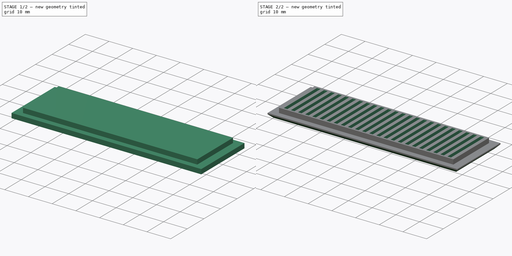
[diagram: build sequence overview — one tinted view per stage of 2, left to right]
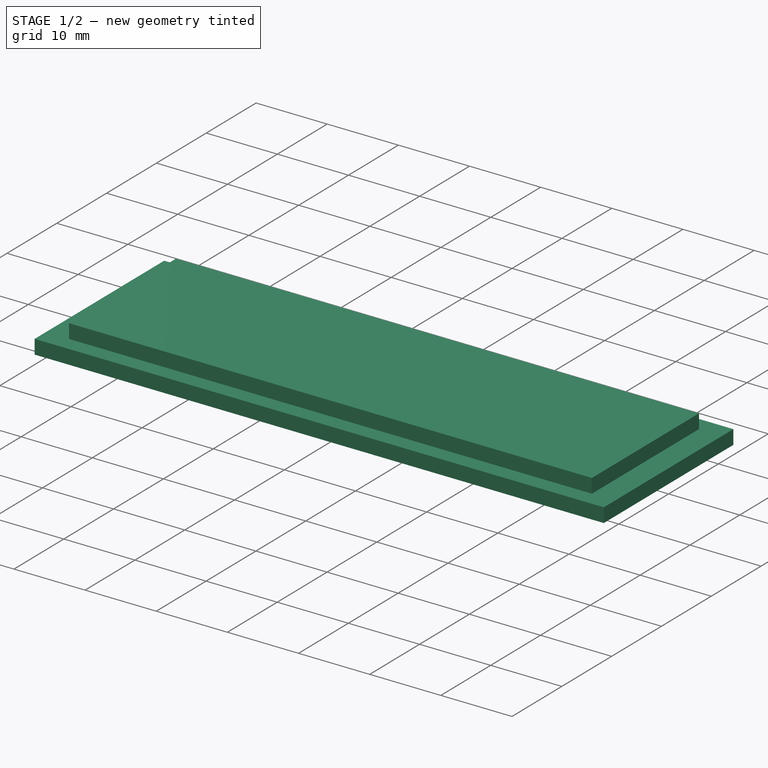
[diagram: stage 1 of 2 — iso view after this stage's code; geometry added in this stage tinted green]
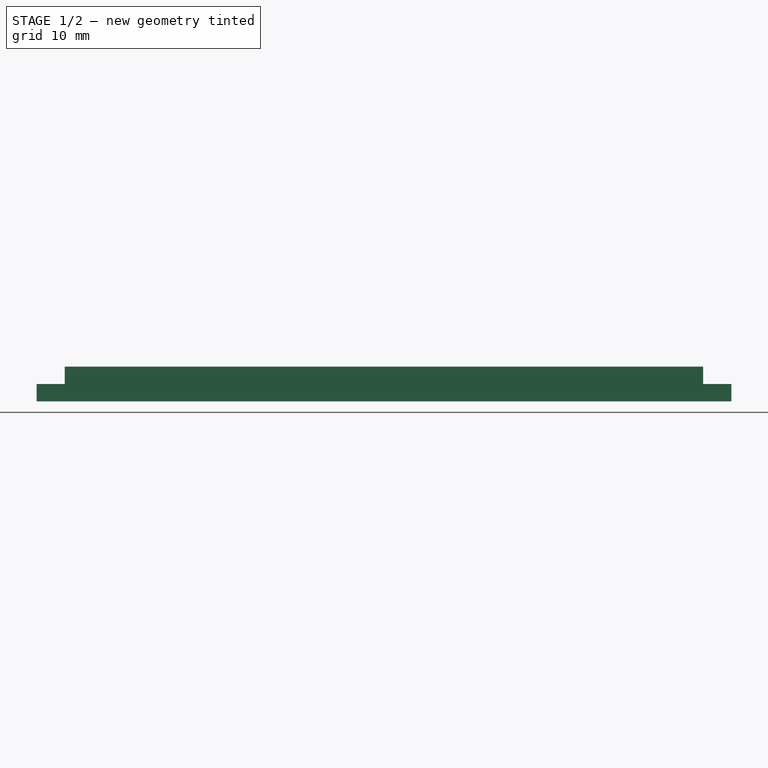
[diagram: stage 1 of 2 — front view after this stage's code; geometry added in this stage tinted green]
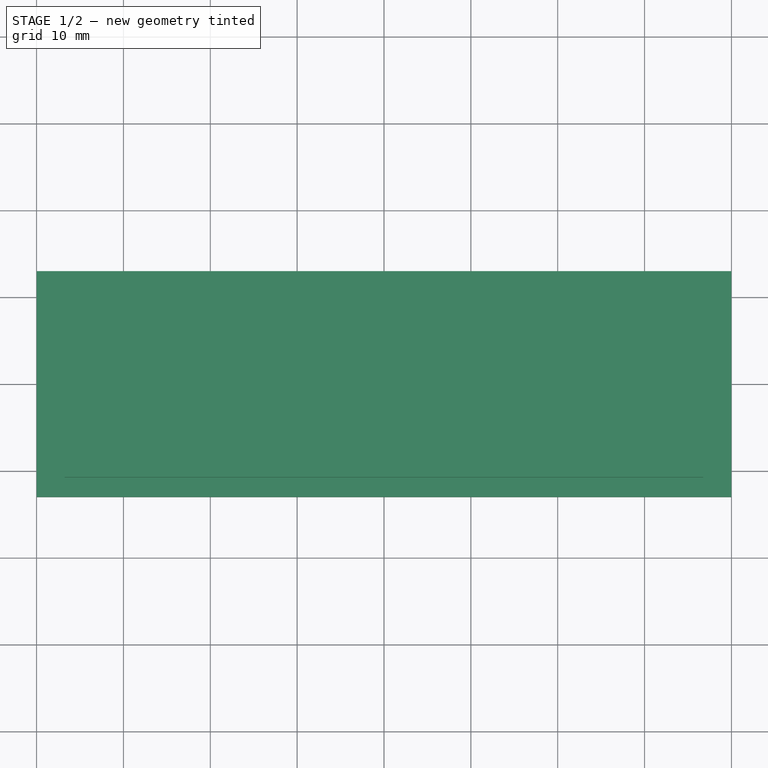
[diagram: stage 1 of 2 — top view after this stage's code; geometry added in this stage tinted green]
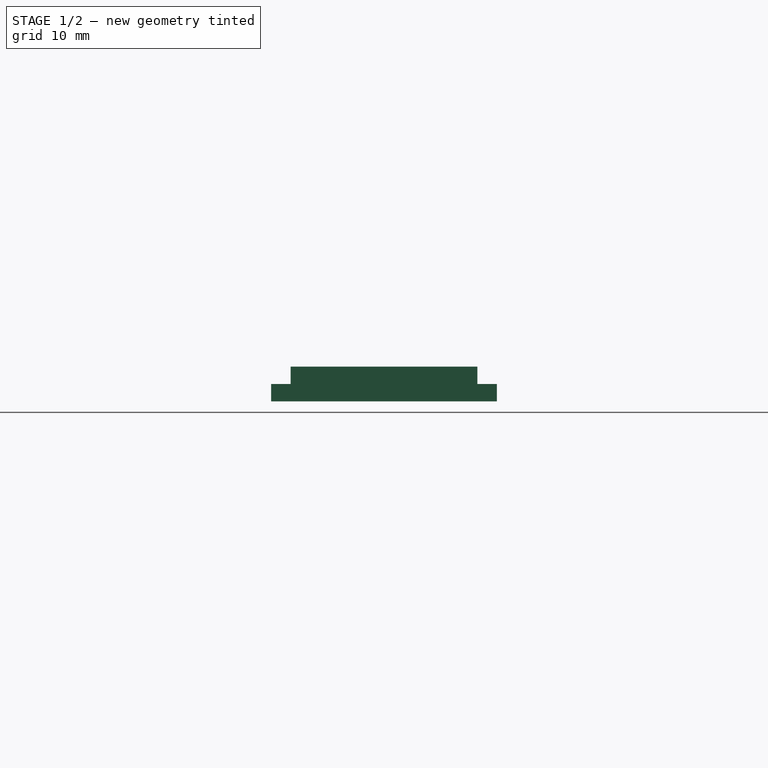
[diagram: stage 1 of 2 — right view after this stage's code; geometry added in this stage tinted green]
FCSTD DOCUMENT  (FreeCAD 0.19R19180 (Git))
Label: top_grill_mk1
License: All rights reserved
LicenseURL: http://en.wikipedia.org/wiki/All_rights_reserved
objects: Sketcher::SketchObject×3, PartDesign::Pad×2, PartDesign::Pocket×1, PartDesign::Chamfer×1, PartDesign::Body×1
note: 11 computed .brp shape members not serialized (recipe doc carries the construction recipe); baked Part::Feature solids carry a one-line shape summary decoded from their .brp

FEATURE [Sketcher::SketchObject] Sketch
  MapMode = 5
  Support = -> [XY_Plane]
  sketch-geometry (4):
    g0: LineSegment StartX=-40 StartY=13 StartZ=0 EndX=40 EndY=13 EndZ=0
    g1: LineSegment StartX=40 StartY=13 StartZ=0 EndX=40 EndY=-13 EndZ=0
    g2: LineSegment StartX=40 StartY=-13 StartZ=0 EndX=-40 EndY=-13 EndZ=0
    g3: LineSegment StartX=-40 StartY=-13 StartZ=0 EndX=-40 EndY=13 EndZ=0
  constraints (12):
    c: Coincident(g0,g1)
    c: Coincident(g1,g2)
    c: Coincident(g2,g3)
    c: Coincident(g3,g0)
    c: Horizontal(g0)
    c: Horizontal(g2)
    c: Vertical(g1)
    c: Vertical(g3)
    c: DistanceX(g0,g0) = 80
    c: DistanceY(g3,g3) = 26
    c: DistanceY(g-1,g0) = 13
    c: DistanceX(g0,g-1) = 40
FEATURE [PartDesign::Pad] Pad
  Length = 2
  Length2 = 100
  Profile = -> Sketch
  Type = 0
FEATURE [Sketcher::SketchObject] Sketch001
  MapMode = 5
  Placement = pos=(0,0,2) rot=(0,0,1;0rad)
  Support = -> [Pad]
  sketch-geometry (4):
    g0: LineSegment StartX=-36.75 StartY=10.75 StartZ=0 EndX=36.75 EndY=10.75 EndZ=0
    g1: LineSegment StartX=36.75 StartY=10.75 StartZ=0 EndX=36.75 EndY=-10.75 EndZ=0
    g2: LineSegment StartX=36.75 StartY=-10.75 StartZ=0 EndX=-36.75 EndY=-10.75 EndZ=0
    g3: LineSegment StartX=-36.75 StartY=-10.75 StartZ=0 EndX=-36.75 EndY=10.75 EndZ=0
  constraints (12):
    c: Coincident(g0,g1)
    c: Coincident(g1,g2)
    c: Coincident(g2,g3)
    c: Coincident(g3,g0)
    c: Horizontal(g0)
    c: Horizontal(g2)
    c: Vertical(g1)
    c: Vertical(g3)
    c: DistanceX(g0,g0) = 73.5
    c: DistanceX(g0,g-1) = 36.75
    c: DistanceY(g1,g1) = 21.5
    c: DistanceY(g-1,g0) = 10.75
FEATURE [PartDesign::Pad] Pad001
  BaseFeature = -> Pad
  Length = 2
  Length2 = 100
  Profile = -> Sketch001
  Type = 0
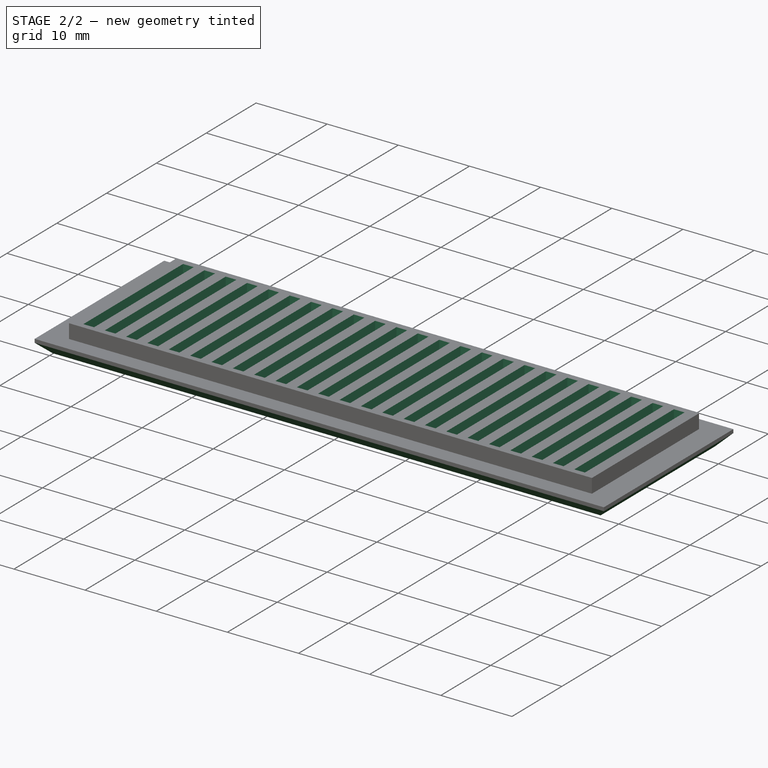
[diagram: stage 2 of 2 — iso view after this stage's code; geometry added in this stage tinted green]
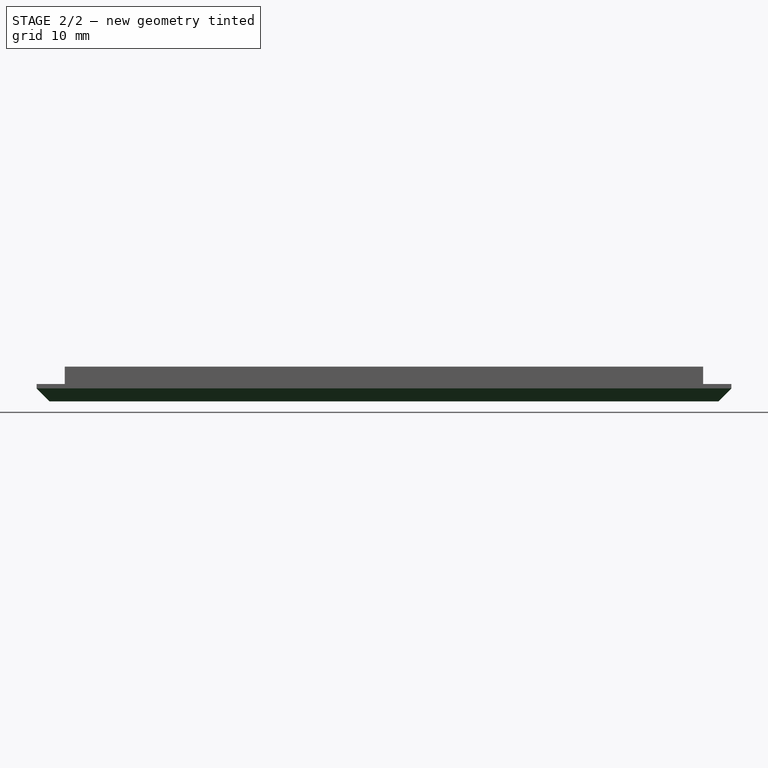
[diagram: stage 2 of 2 — front view after this stage's code; geometry added in this stage tinted green]
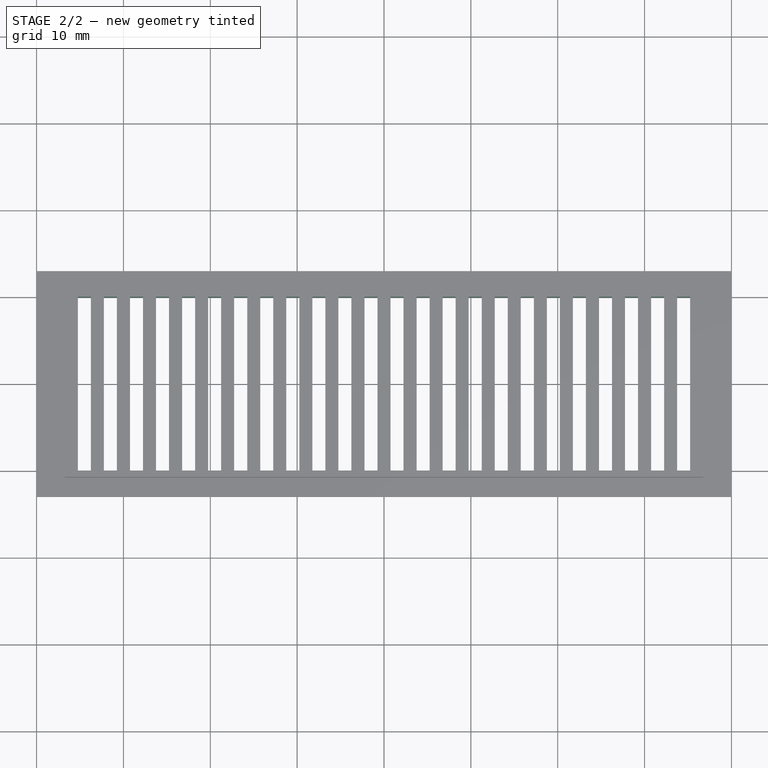
[diagram: stage 2 of 2 — top view after this stage's code; geometry added in this stage tinted green]
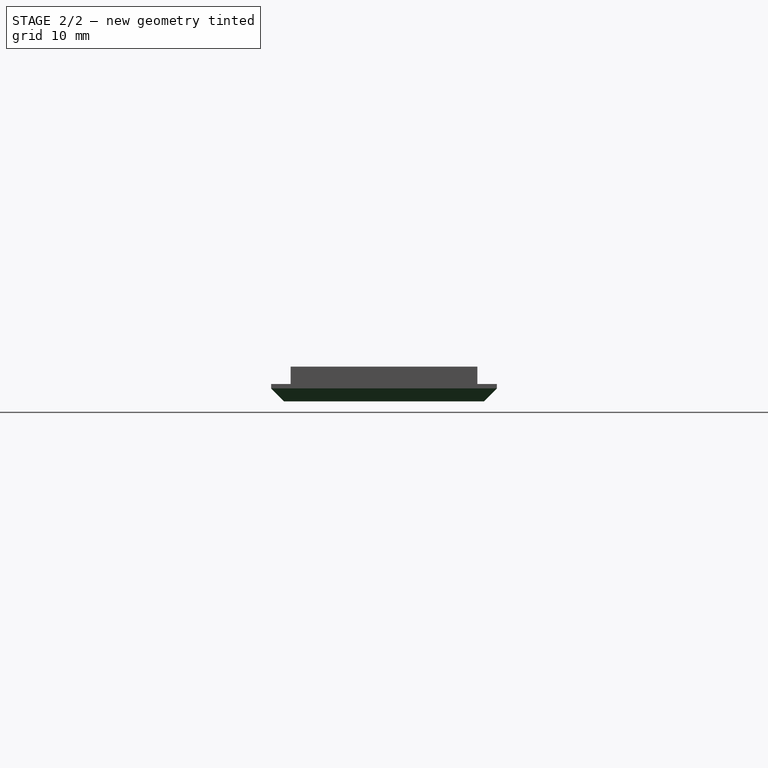
[diagram: stage 2 of 2 — right view after this stage's code; geometry added in this stage tinted green]
FEATURE [Sketcher::SketchObject] Sketch002
  MapMode = 5
  Placement = pos=(0,0,4) rot=(0,0,1;0rad)
  Support = -> [Pad001]
  sketch-geometry (96):
    g0: LineSegment StartX=0.75 StartY=10 StartZ=0 EndX=2.25 EndY=10 EndZ=0
    g1: LineSegment StartX=2.25 StartY=10 StartZ=0 EndX=2.25 EndY=-10 EndZ=0
    g2: LineSegment StartX=2.25 StartY=-10 StartZ=0 EndX=0.75 EndY=-10 EndZ=0
    g3: LineSegment StartX=0.75 StartY=-10 StartZ=0 EndX=0.75 EndY=10 EndZ=0
    g4: LineSegment StartX=3.75 StartY=10 StartZ=0 EndX=5.25 EndY=10 EndZ=0
    g5: LineSegment StartX=5.25 StartY=10 StartZ=0 EndX=5.25 EndY=-10 EndZ=0
    g6: LineSegment StartX=5.25 StartY=-10 StartZ=0 EndX=3.75 EndY=-10 EndZ=0
    g7: LineSegment StartX=3.75 StartY=-10 StartZ=0 EndX=3.75 EndY=10 EndZ=0
    g8: LineSegment StartX=6.75 StartY=10 StartZ=0 EndX=8.25 EndY=10 EndZ=0
    g9: LineSegment StartX=8.25 StartY=10 StartZ=0 EndX=8.25 EndY=-10 EndZ=0
    g10: LineSegment StartX=8.25 StartY=-10 StartZ=0 EndX=6.75 EndY=-10 EndZ=0
    g11: LineSegment StartX=6.75 StartY=-10 StartZ=0 EndX=6.75 EndY=10 EndZ=0
    g12: LineSegment StartX=9.75 StartY=10 StartZ=0 EndX=11.25 EndY=10 EndZ=0
    g13: LineSegment StartX=11.25 StartY=10 StartZ=0 EndX=11.25 EndY=-10 EndZ=0
    g14: LineSegment StartX=11.25 StartY=-10 StartZ=0 EndX=9.75 EndY=-10 EndZ=0
    g15: LineSegment StartX=9.75 StartY=-10 StartZ=0 EndX=9.75 EndY=10 EndZ=0
    g16: LineSegment StartX=12.75 StartY=10 StartZ=0 EndX=14.25 EndY=10 EndZ=0
    g17: LineSegment StartX=14.25 StartY=10 StartZ=0 EndX=14.25 EndY=-10 EndZ=0
    g18: LineSegment StartX=14.25 StartY=-10 StartZ=0 EndX=12.75 EndY=-10 EndZ=0
    g19: LineSegment StartX=12.75 StartY=-10 StartZ=0 EndX=12.75 EndY=10 EndZ=0
    g20: LineSegment StartX=15.75 StartY=10 StartZ=0 EndX=17.25 EndY=10 EndZ=0
    g21: LineSegment StartX=17.25 StartY=10 StartZ=0 EndX=17.25 EndY=-10 EndZ=0
    g22: LineSegment StartX=17.25 StartY=-10 StartZ=0 EndX=15.75 EndY=-10 EndZ=0
    g23: LineSegment StartX=15.75 StartY=-10 StartZ=0 EndX=15.75 EndY=10 EndZ=0
    g24: LineSegment StartX=18.75 StartY=10 StartZ=0 EndX=20.25 EndY=10 EndZ=0
    g25: LineSegment StartX=20.25 StartY=10 StartZ=0 EndX=20.25 EndY=-10 EndZ=0
    g26: LineSegment StartX=20.25 StartY=-10 StartZ=0 EndX=18.75 EndY=-10 EndZ=0
    g27: LineSegment StartX=18.75 StartY=-10 StartZ=0 EndX=18.75 EndY=10 EndZ=0
    g28: LineSegment StartX=21.75 StartY=10 StartZ=0 EndX=23.25 EndY=10 EndZ=0
    g29: LineSegment StartX=23.25 StartY=10 StartZ=0 EndX=23.25 EndY=-10 EndZ=0
    g30: LineSegment StartX=23.25 StartY=-10 StartZ=0 EndX=21.75 EndY=-10 EndZ=0
    g31: LineSegment StartX=21.75 StartY=-10 StartZ=0 EndX=21.75 EndY=10 EndZ=0
    g32: LineSegment StartX=24.75 StartY=10 StartZ=0 EndX=26.25 EndY=10 EndZ=0
    g33: LineSegment StartX=26.25 StartY=10 StartZ=0 EndX=26.25 EndY=-10 EndZ=0
    g34: LineSegment StartX=26.25 StartY=-10 StartZ=0 EndX=24.75 EndY=-10 EndZ=0
    g35: LineSegment StartX=24.75 StartY=-10 StartZ=0 EndX=24.75 EndY=10 EndZ=0
    g36: LineSegment StartX=27.75 StartY=10 StartZ=0 EndX=29.25 EndY=10 EndZ=0
    g37: LineSegment StartX=29.25 StartY=10 StartZ=0 EndX=29.25 EndY=-10 EndZ=0
    g38: LineSegment StartX=29.25 StartY=-10 StartZ=0 EndX=27.75 EndY=-10 EndZ=0
    g39: LineSegment StartX=27.75 StartY=-10 StartZ=0 EndX=27.75 EndY=10 EndZ=0
    g40: LineSegment StartX=30.75 StartY=10 StartZ=0 EndX=32.25 EndY=10 EndZ=0
    g41: LineSegment StartX=32.25 StartY=10 StartZ=0 EndX=32.25 EndY=-10 EndZ=0
    g42: LineSegment StartX=32.25 StartY=-10 StartZ=0 EndX=30.75 EndY=-10 EndZ=0
    g43: LineSegment StartX=30.75 StartY=-10 StartZ=0 EndX=30.75 EndY=10 EndZ=0
    g44: LineSegment StartX=33.75 StartY=10 StartZ=0 EndX=35.25 EndY=10 EndZ=0
    g45: LineSegment StartX=35.25 StartY=10 StartZ=0 EndX=35.25 EndY=-10 EndZ=0
    g46: LineSegment StartX=35.25 StartY=-10 StartZ=0 EndX=33.75 EndY=-10 EndZ=0
    g47: LineSegment StartX=33.75 StartY=-10 StartZ=0 EndX=33.75 EndY=10 EndZ=0
    g48: LineSegment StartX=-2.25 StartY=10 StartZ=0 EndX=-0.75 EndY=10 EndZ=0
    g49: LineSegment StartX=-0.75 StartY=10 StartZ=0 EndX=-0.75 EndY=-10 EndZ=0
    g50: LineSegment StartX=-0.75 StartY=-10 StartZ=0 EndX=-2.25 EndY=-10 EndZ=0
    g51: LineSegment StartX=-2.25 StartY=-10 StartZ=0 EndX=-2.25 EndY=10 EndZ=0
    g52: LineSegment StartX=-5.25 StartY=10 StartZ=0 EndX=-3.75 EndY=10 EndZ=0
    g53: LineSegment StartX=-3.75 StartY=10 StartZ=0 EndX=-3.75 EndY=-10 EndZ=0
    g54: LineSegment StartX=-3.75 StartY=-10 StartZ=0 EndX=-5.25 EndY=-10 EndZ=0
    g55: LineSegment StartX=-5.25 StartY=-10 StartZ=0 EndX=-5.25 EndY=10 EndZ=0
    g56: LineSegment StartX=-8.25 StartY=10 StartZ=0 EndX=-6.75 EndY=10 EndZ=0
    g57: LineSegment StartX=-6.75 StartY=10 StartZ=0 EndX=-6.75 EndY=-10 EndZ=0
    g58: LineSegment StartX=-6.75 StartY=-10 StartZ=0 EndX=-8.25 EndY=-10 EndZ=0
    g59: LineSegment StartX=-8.25 StartY=-10 StartZ=0 EndX=-8.25 EndY=10 EndZ=0
    g60: LineSegment StartX=-11.25 StartY=10 StartZ=0 EndX=-9.75 EndY=10 EndZ=0
    g61: LineSegment StartX=-9.75 StartY=10 StartZ=0 EndX=-9.75 EndY=-10 EndZ=0
    g62: LineSegment StartX=-9.75 StartY=-10 StartZ=0 EndX=-11.25 EndY=-10 EndZ=0
    g63: LineSegment StartX=-11.25 StartY=-10 StartZ=0 EndX=-11.25 EndY=10 EndZ=0
    g64: LineSegment StartX=-14.25 StartY=10 StartZ=0 EndX=-12.75 EndY=10 EndZ=0
    g65: LineSegment StartX=-12.75 StartY=10 StartZ=0 EndX=-12.75 EndY=-10 EndZ=0
    g66: LineSegment StartX=-12.75 StartY=-10 StartZ=0 EndX=-14.25 EndY=-10 EndZ=0
    g67: LineSegment StartX=-14.25 StartY=-10 StartZ=0 EndX=-14.25 EndY=10 EndZ=0
    g68: LineSegment StartX=-17.25 StartY=10 StartZ=0 EndX=-15.75 EndY=10 EndZ=0
    g69: LineSegment StartX=-15.75 StartY=10 StartZ=0 EndX=-15.75 EndY=-10 EndZ=0
    g70: LineSegment StartX=-15.75 StartY=-10 StartZ=0 EndX=-17.25 EndY=-10 EndZ=0
    g71: LineSegment StartX=-17.25 StartY=-10 StartZ=0 EndX=-17.25 EndY=10 EndZ=0
    g72: LineSegment StartX=-20.25 StartY=10 StartZ=0 EndX=-18.75 EndY=10 EndZ=0
    g73: LineSegment StartX=-18.75 StartY=10 StartZ=0 EndX=-18.75 EndY=-10 EndZ=0
    g74: LineSegment StartX=-18.75 StartY=-10 StartZ=0 EndX=-20.25 EndY=-10 EndZ=0
    g75: LineSegment StartX=-20.25 StartY=-10 StartZ=0 EndX=-20.25 EndY=10 EndZ=0
    g76: LineSegment StartX=-23.25 StartY=10 StartZ=0 EndX=-21.75 EndY=10 EndZ=0
    g77: LineSegment StartX=-21.75 StartY=10 StartZ=0 EndX=-21.75 EndY=-10 EndZ=0
    g78: LineSegment StartX=-21.75 StartY=-10 StartZ=0 EndX=-23.25 EndY=-10 EndZ=0
    g79: LineSegment StartX=-23.25 StartY=-10 StartZ=0 EndX=-23.25 EndY=10 EndZ=0
    g80: LineSegment StartX=-26.25 StartY=10 StartZ=0 EndX=-24.75 EndY=10 EndZ=0
    g81: LineSegment StartX=-24.75 StartY=10 StartZ=0 EndX=-24.75 EndY=-10 EndZ=0
    g82: LineSegment StartX=-24.75 StartY=-10 StartZ=0 EndX=-26.25 EndY=-10 EndZ=0
    g83: LineSegment StartX=-26.25 StartY=-10 StartZ=0 EndX=-26.25 EndY=10 EndZ=0
    g84: LineSegment StartX=-29.25 StartY=10 StartZ=0 EndX=-27.75 EndY=10 EndZ=0
    g85: LineSegment StartX=-27.75 StartY=10 StartZ=0 EndX=-27.75 EndY=-10 EndZ=0
    g86: LineSegment StartX=-27.75 StartY=-10 StartZ=0 EndX=-29.25 EndY=-10 EndZ=0
    g87: LineSegment StartX=-29.25 StartY=-10 StartZ=0 EndX=-29.25 EndY=10 EndZ=0
    g88: LineSegment StartX=-32.25 StartY=10 StartZ=0 EndX=-30.75 EndY=10 EndZ=0
    g89: LineSegment StartX=-30.75 StartY=10 StartZ=0 EndX=-30.75 EndY=-10 EndZ=0
    g90: LineSegment StartX=-30.75 StartY=-10 StartZ=0 EndX=-32.25 EndY=-10 EndZ=0
    g91: LineSegment StartX=-32.25 StartY=-10 StartZ=0 EndX=-32.25 EndY=10 EndZ=0
    g92: LineSegment StartX=-35.25 StartY=10 StartZ=0 EndX=-33.75 EndY=10 EndZ=0
    g93: LineSegment StartX=-33.75 StartY=10 StartZ=0 EndX=-33.75 EndY=-10 EndZ=0
    g94: LineSegment StartX=-33.75 StartY=-10 StartZ=0 EndX=-35.25 EndY=-10 EndZ=0
    g95: LineSegment StartX=-35.25 StartY=-10 StartZ=0 EndX=-35.25 EndY=10 EndZ=0
  constraints (288):
    c: Coincident(g0,g1)
    c: Coincident(g1,g2)
    c: Coincident(g2,g3)
    c: Coincident(g3,g0)
    c: Horizontal(g0)
    c: Horizontal(g2)
    c: Vertical(g1)
    c: Vertical(g3)
    c: DistanceY(g3,g3) = 20
    c: DistanceX(g-1,g0) = 0.75
    c: DistanceX(g0,g0) = 1.5
    c: DistanceY(g-1,g0) = 10
    c: Coincident(g4,g5)
    c: Coincident(g5,g6)
    c: Coincident(g6,g7)
    c: Coincident(g7,g4)
    c: Horizontal(g4)
    c: Horizontal(g6)
    c: Vertical(g5)
    c: Vertical(g7)
    c: Coincident(g8,g9)
    c: Coincident(g9,g10)
    c: Coincident(g10,g11)
    c: Coincident(g11,g8)
    c: Horizontal(g8)
    c: Horizontal(g10)
    c: Vertical(g9)
    c: Vertical(g11)
    c: Coincident(g12,g13)
    c: Coincident(g13,g14)
    c: Coincident(g14,g15)
    c: Coincident(g15,g12)
    c: Horizontal(g12)
    c: Horizontal(g14)
    c: Vertical(g13)
    c: Vertical(g15)
    c: Coincident(g16,g17)
    c: Coincident(g17,g18)
    c: Coincident(g18,g19)
    c: Coincident(g19,g16)
    c: Horizontal(g16)
    c: Horizontal(g18)
    c: Vertical(g17)
    c: Vertical(g19)
    c: Coincident(g20,g21)
    c: Coincident(g21,g22)
    c: Coincident(g22,g23)
    c: Coincident(g23,g20)
    c: Horizontal(g20)
    c: Horizontal(g22)
    c: Vertical(g21)
    c: Vertical(g23)
    c: Coincident(g24,g25)
    c: Coincident(g25,g26)
    c: Coincident(g26,g27)
    c: Coincident(g27,g24)
    c: Horizontal(g24)
    c: Horizontal(g26)
    c: Vertical(g25)
    c: Vertical(g27)
    c: Coincident(g28,g29)
    c: Coincident(g29,g30)
    c: Coincident(g30,g31)
    c: Coincident(g31,g28)
    c: Horizontal(g28)
    c: Horizontal(g30)
    c: Vertical(g29)
    c: Vertical(g31)
    c: Coincident(g32,g33)
    c: Coincident(g33,g34)
    c: Coincident(g34,g35)
    c: Coincident(g35,g32)
    c: Horizontal(g32)
    c: Horizontal(g34)
    c: Vertical(g33)
    c: Vertical(g35)
    c: Coincident(g36,g37)
    c: Coincident(g37,g38)
    c: Coincident(g38,g39)
    c: Coincident(g39,g36)
    c: Horizontal(g36)
    c: Horizontal(g38)
    c: Vertical(g37)
    c: Vertical(g39)
    c: Coincident(g40,g41)
    c: Coincident(g41,g42)
    c: Coincident(g42,g43)
    c: Coincident(g43,g40)
    c: Horizontal(g40)
    c: Horizontal(g42)
    c: Vertical(g41)
    c: Vertical(g43)
    c: Coincident(g44,g45)
    c: Coincident(g45,g46)
    c: Coincident(g46,g47)
    c: Coincident(g47,g44)
    c: Horizontal(g44)
    c: Horizontal(g46)
    c: Vertical(g45)
    c: Vertical(g47)
    c: Equal(g2,g6)
    c: Equal(g6,g10)
    c: Equal(g10,g14)
    c: Equal(g14,g18)
    c: Equal(g18,g22)
    c: Equal(g22,g26)
    c: Equal(g26,g30)
    c: Equal(g30,g34)
    c: Equal(g34,g38)
    c: Equal(g38,g42)
    c: Equal(g42,g46)
    c: Horizontal(g6,g1)
    c: Horizontal(g1,g10)
    c: Horizontal(g10,g14)
    c: Horizontal(g14,g18)
    c: Horizontal(g18,g22)
    c: Horizontal(g22,g26)
    c: Horizontal(g26,g30)
    c: Horizontal(g30,g34)
    c: Horizontal(g34,g38)
    c: Horizontal(g38,g42)
    c: Horizontal(g42,g46)
    c: Horizontal(g0,g4)
    c: Horizontal(g4,g8)
    c: Horizontal(g8,g12)
    c: Horizontal(g12,g16)
    c: Horizontal(g16,g20)
    c: Horizontal(g20,g24)
    c: Horizontal(g24,g28)
    c: Horizontal(g28,g32)
    c: Horizontal(g32,g36)
    c: Horizontal(g36,g40)
    c: Horizontal(g40,g44)
    c: DistanceX(g0,g4) = 1.5
    c: DistanceX(g4,g8) = 1.5
    c: DistanceX(g8,g12) = 1.5
    c: DistanceX(g12,g16) = 1.5
    c: DistanceX(g16,g20) = 1.5
    c: DistanceX(g20,g24) = 1.5
    c: DistanceX(g24,g28) = 1.5
    c: DistanceX(g28,g32) = 1.5
    c: DistanceX(g32,g36) = 1.5
    c: DistanceX(g36,g40) = 1.5
    c: DistanceX(g40,g44) = 1.5
    c: Coincident(g48,g49)
    c: Coincident(g49,g50)
    c: Coincident(g50,g51)
    c: Coincident(g51,g48)
    c: Horizontal(g48)
    c: Horizontal(g50)
    c: Vertical(g49)
    c: Vertical(g51)
    c: Coincident(g52,g53)
    c: Coincident(g53,g54)
    c: Coincident(g54,g55)
    c: Coincident(g55,g52)
    c: Horizontal(g52)
    c: Horizontal(g54)
    c: Vertical(g53)
    c: Vertical(g55)
    c: Coincident(g56,g57)
    c: Coincident(g57,g58)
    c: Coincident(g58,g59)
    c: Coincident(g59,g56)
    c: Horizontal(g56)
    c: Horizontal(g58)
    c: Vertical(g57)
    c: Vertical(g59)
    c: Coincident(g60,g61)
    c: Coincident(g61,g62)
    c: Coincident(g62,g63)
    c: Coincident(g63,g60)
    c: Horizontal(g60)
    c: Horizontal(g62)
    c: Vertical(g61)
    c: Vertical(g63)
    c: Coincident(g64,g65)
    c: Coincident(g65,g66)
    c: Coincident(g66,g67)
    c: Coincident(g67,g64)
    c: Horizontal(g64)
    c: Horizontal(g66)
    c: Vertical(g65)
    c: Vertical(g67)
    c: Coincident(g68,g69)
    c: Coincident(g69,g70)
    c: Coincident(g70,g71)
    c: Coincident(g71,g68)
    c: Horizontal(g68)
    c: Horizontal(g70)
    c: Vertical(g69)
    c: Vertical(g71)
    c: Coincident(g72,g73)
    c: Coincident(g73,g74)
    c: Coincident(g74,g75)
    c: Coincident(g75,g72)
    c: Horizontal(g72)
    c: Horizontal(g74)
    c: Vertical(g73)
    c: Vertical(g75)
    c: Coincident(g76,g77)
    c: Coincident(g77,g78)
    c: Coincident(g78,g79)
    c: Coincident(g79,g76)
    c: Horizontal(g76)
    c: Horizontal(g78)
    c: Vertical(g77)
    c: Vertical(g79)
    c: Coincident(g80,g81)
    c: Coincident(g81,g82)
    c: Coincident(g82,g83)
    c: Coincident(g83,g80)
    c: Horizontal(g80)
    c: Horizontal(g82)
    c: Vertical(g81)
    c: Vertical(g83)
    c: Coincident(g84,g85)
    c: Coincident(g85,g86)
    c: Coincident(g86,g87)
    c: Coincident(g87,g84)
    c: Horizontal(g84)
    c: Horizontal(g86)
    c: Vertical(g85)
    c: Vertical(g87)
    c: Coincident(g88,g89)
    c: Coincident(g89,g90)
    c: Coincident(g90,g91)
    c: Coincident(g91,g88)
    c: Horizontal(g88)
    c: Horizontal(g90)
    c: Vertical(g89)
    c: Vertical(g91)
    c: Coincident(g92,g93)
    c: Coincident(g93,g94)
    c: Coincident(g94,g95)
    c: Coincident(g95,g92)
    c: Horizontal(g92)
    c: Horizontal(g94)
    c: Vertical(g93)
    c: Vertical(g95)
    c: Equal(g48,g52)
    c: Equal(g52,g56)
    c: Equal(g56,g60)
    c: Equal(g60,g64)
    c: Equal(g64,g68)
    c: Equal(g68,g72)
    c: Equal(g72,g76)
    c: Equal(g76,g80)
    c: Equal(g80,g84)
    c: Equal(g84,g88)
    c: Equal(g88,g92)
    c: Horizontal(g48,g52)
    c: Horizontal(g52,g56)
    c: Horizontal(g56,g60)
    c: Horizontal(g60,g64)
    c: Horizontal(g64,g68)
    c: Horizontal(g68,g72)
    c: Horizontal(g72,g76)
    c: Horizontal(g76,g80)
    c: Horizontal(g80,g84)
    c: Horizontal(g84,g88)
    c: Horizontal(g88,g92)
    c: Horizontal(g48,g0)
    c: DistanceX(g48,g-1) = 0.75
    c: DistanceX(g52,g48) = 1.5
    c: DistanceX(g48,g48) = 1.5
    c: DistanceX(g56,g52) = 1.5
    c: DistanceX(g60,g56) = 1.5
    c: DistanceX(g64,g60) = 1.5
    c: DistanceX(g68,g64) = 1.5
    c: DistanceX(g72,g68) = 1.5
    c: DistanceX(g76,g72) = 1.5
    c: DistanceX(g80,g76) = 1.5
    c: DistanceX(g84,g80) = 1.5
    c: DistanceX(g88,g84) = 1.5
    c: DistanceX(g92,g88) = 1.5
    c: Horizontal(g2,g49)
    c: Horizontal(g49,g53)
    c: Horizontal(g53,g57)
    c: Horizontal(g57,g61)
    c: Horizontal(g61,g65)
    c: Horizontal(g65,g69)
    c: Horizontal(g69,g73)
    c: Horizontal(g73,g77)
    c: Horizontal(g77,g81)
    c: Horizontal(g81,g85)
    c: Horizontal(g85,g89)
    c: Horizontal(g89,g93)
FEATURE [PartDesign::Pocket] Pocket
  BaseFeature = -> Pad001
  Length = 5
  Length2 = 100
  Profile = -> Sketch002
  Type = 0
FEATURE [PartDesign::Chamfer] Chamfer
  Base = -> Pocket [Edge11,Edge9,Edge3,Edge6]
  BaseFeature = -> Pocket
  Size = 1.5
FEATURE [PartDesign::Body] Body
  Group = -> [Sketch,Pad,Sketch001,Pad001,Sketch002,Pocket,Chamfer]
  Origin = -> Origin
  Tip = -> Chamfer
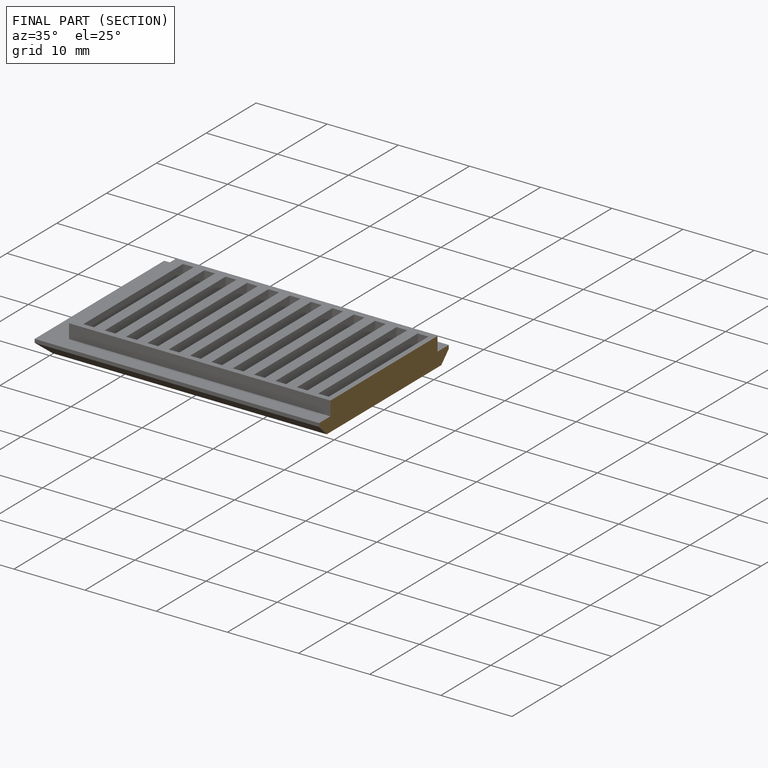
[diagram: finished part — half-section view (interior)]
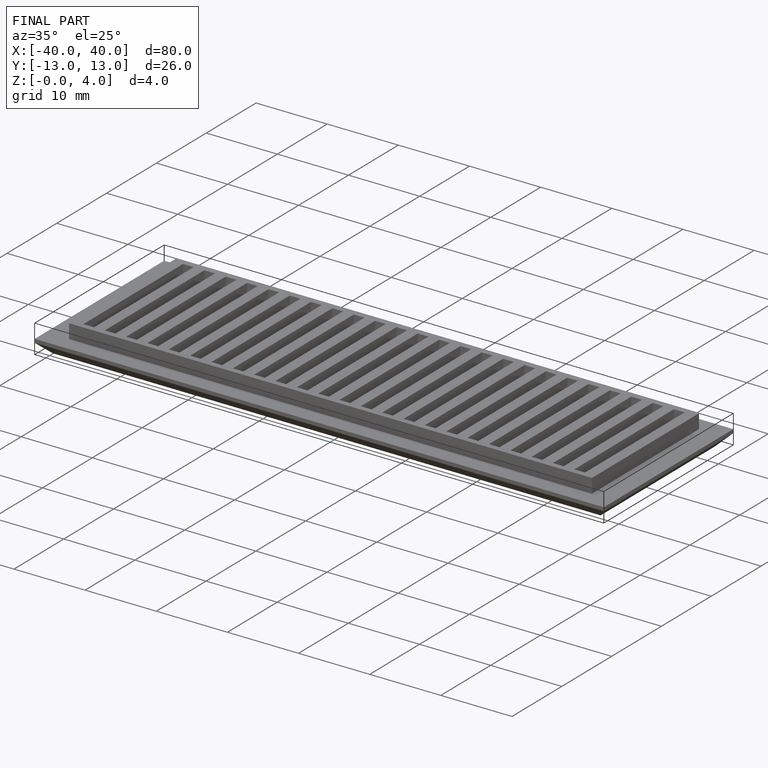
[diagram: finished part — iso view with bounding-box wireframe]
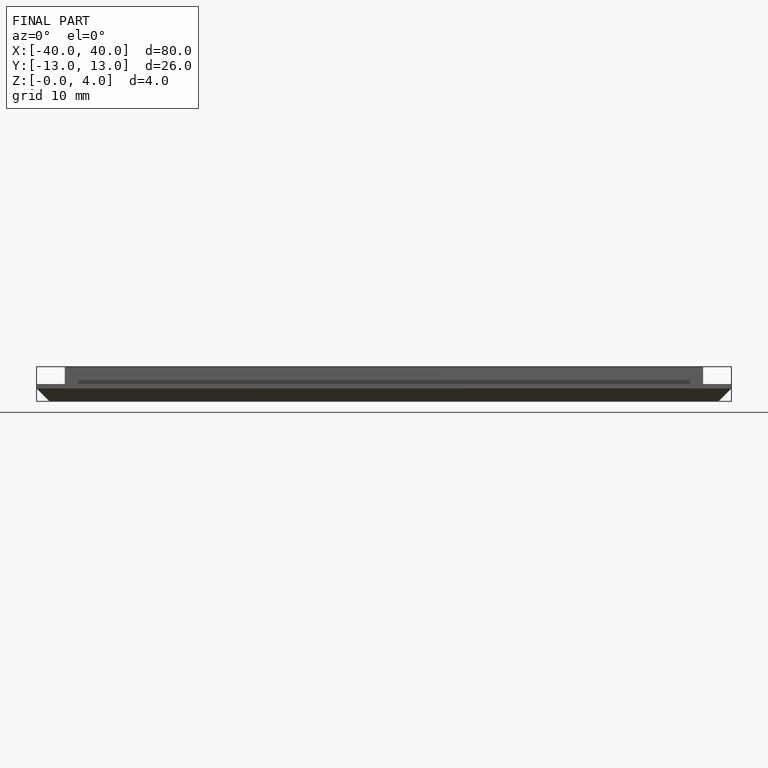
[diagram: finished part — front view with bounding-box wireframe]
